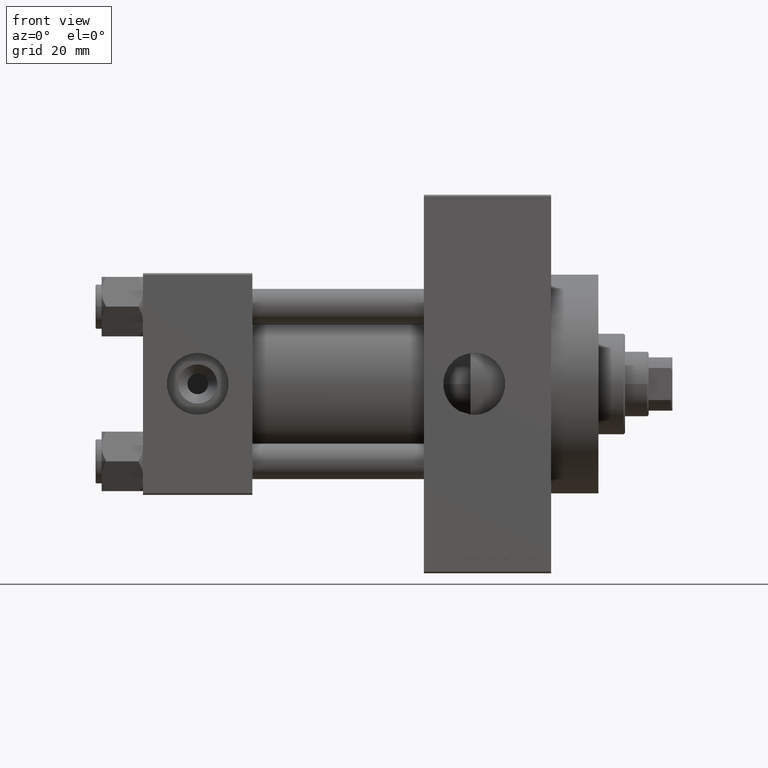
[diagram: clean part render]
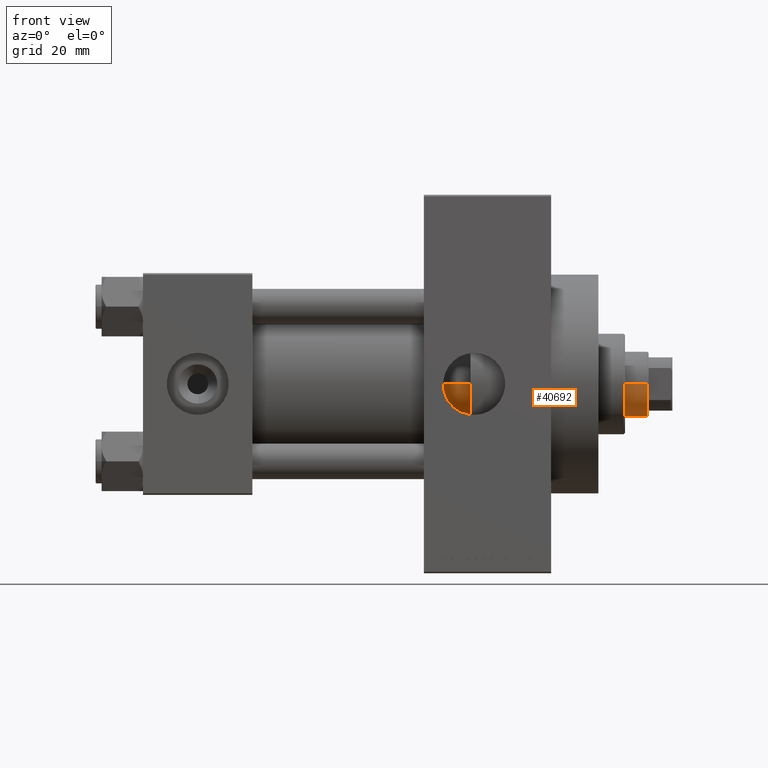
[diagram: same view with one face highlighted and labeled with its STEP entity id]
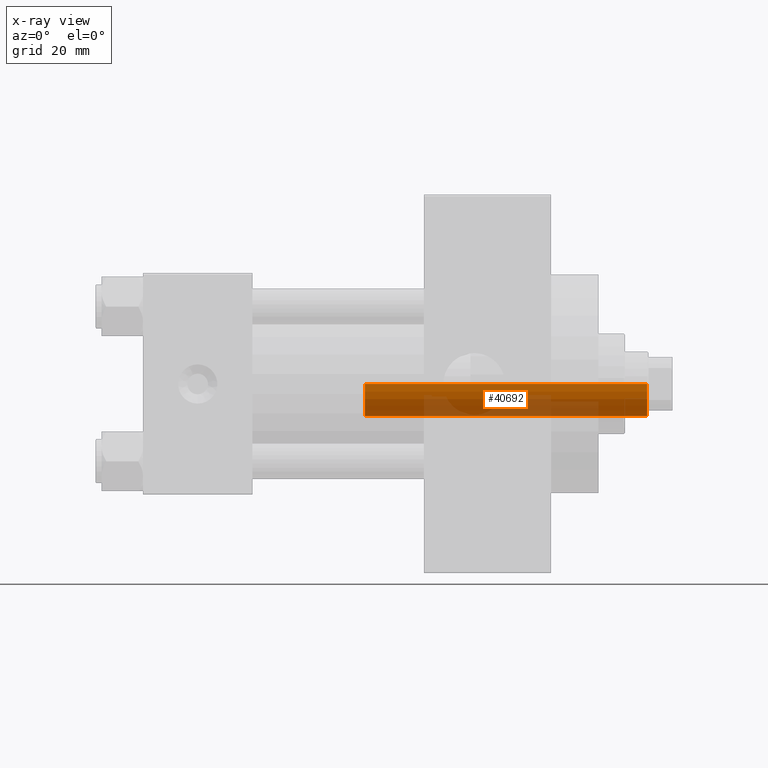
[diagram: x-ray of the same camera — body ghosted, the highlighted face saturated]
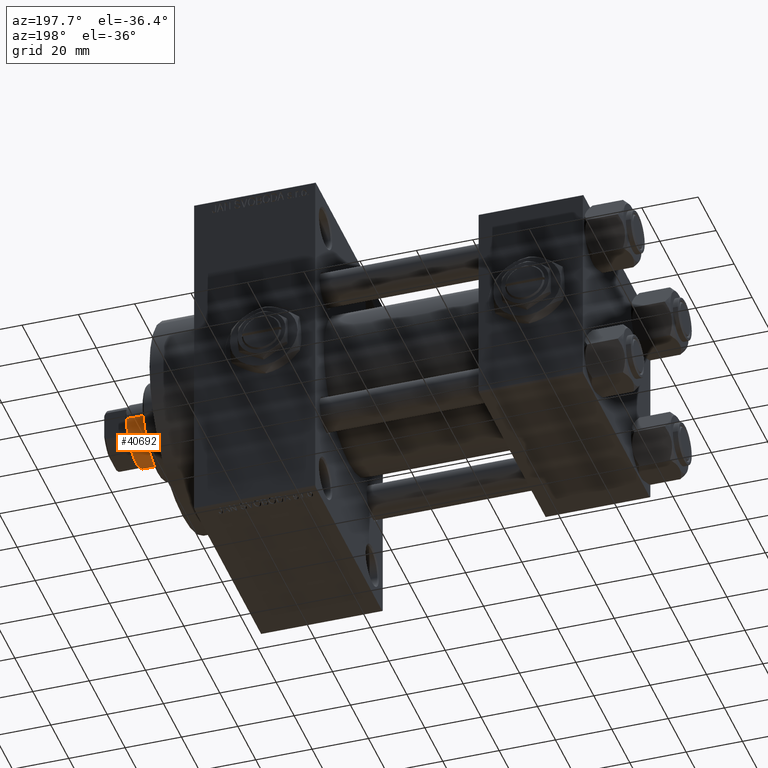
[diagram: same view with one face highlighted and labeled with its STEP entity id]
A machine part, front view. The second image highlights one B-rep face of the part: STEP entity #40692.
The next image is the same camera in x-ray: the body ghosted, the highlighted face saturated — about 28% of this face is hidden behind the body in this view.
A second angle (auxiliary view) of the same face is appended — the face is thin or edge-on in the first view.
In plain terms, the highlighted cylindrical surface (edge-blend (fillet) strip) has radius 11 mm, axis along (-1, 0, 0).
Its self-contained STEP definition (entity closure, byte-faithful):
#106 = VERTEX_POINT ( 'NONE', #40738 ) ;
#1588 = CYLINDRICAL_SURFACE ( 'NONE', #44713, 11.00000000000000000 ) ;
#1687 = AXIS2_PLACEMENT_3D ( 'NONE', #31658, #46915, #39660 ) ;
#3350 = VERTEX_POINT ( 'NONE', #23734 ) ;
#3587 = CARTESIAN_POINT ( 'NONE',  ( 11.00000000000000000, 1.347111479062088405E-15, 38.00000000000000000 ) ) ;
#5898 = ORIENTED_EDGE ( 'NONE', *, *, #20198, .T. ) ;
#6449 = CIRCLE ( 'NONE', #42416, 11.00000000000000000 ) ;
#10530 = CARTESIAN_POINT ( 'NONE',  ( -11.00000000000000000, 0.000000000000000000, 38.00000000000000000 ) ) ;
#12665 = VERTEX_POINT ( 'NONE', #10530 ) ;
#13091 = DIRECTION ( 'NONE',  ( -0.000000000000000000, -0.000000000000000000, -1.000000000000000000 ) ) ;
#15376 = ORIENTED_EDGE ( 'NONE', *, *, #49512, .F. ) ;
#16827 = CARTESIAN_POINT ( 'NONE',  ( 0.000000000000000000, 0.000000000000000000, 134.0000000000000000 ) ) ;
#20198 = EDGE_CURVE ( 'NONE', #106, #24361, #46731, .T. ) ;
#20599 = FACE_OUTER_BOUND ( 'NONE', #33076, .T. ) ;
#21326 = CARTESIAN_POINT ( 'NONE',  ( -11.00000000000000000, 0.000000000000000000, 134.0000000000000000 ) ) ;
#21619 = DIRECTION ( 'NONE',  ( 1.000000000000000000, 0.000000000000000000, 0.000000000000000000 ) ) ;
#23734 = CARTESIAN_POINT ( 'NONE',  ( -11.00000000000000000, 0.000000000000000000, 133.5000000000000000 ) ) ;
#24261 = EDGE_CURVE ( 'NONE', #24361, #12665, #6449, .T. ) ;
#24361 = VERTEX_POINT ( 'NONE', #3587 ) ;
#25278 = EDGE_CURVE ( 'NONE', #3350, #106, #28046, .T. ) ;
#27701 = CARTESIAN_POINT ( 'NONE',  ( 11.00000000000000000, 1.347111479062088405E-15, 134.0000000000000000 ) ) ;
#28046 = CIRCLE ( 'NONE', #1687, 11.00000000000000000 ) ;
#28359 = DIRECTION ( 'NONE',  ( -1.000000000000000000, 0.000000000000000000, 0.000000000000000000 ) ) ;
#29083 = DIRECTION ( 'NONE',  ( -0.000000000000000000, -0.000000000000000000, -1.000000000000000000 ) ) ;
#31658 = CARTESIAN_POINT ( 'NONE',  ( 0.000000000000000000, 0.000000000000000000, 133.5000000000000000 ) ) ;
#31988 = VECTOR ( 'NONE', #42980, 1000.000000000000000 ) ;
#32349 = LINE ( 'NONE', #21326, #48926 ) ;
#33076 = EDGE_LOOP ( 'NONE', ( #45387, #5898, #37963, #15376 ) ) ;
#37963 = ORIENTED_EDGE ( 'NONE', *, *, #24261, .T. ) ;
#39660 = DIRECTION ( 'NONE',  ( 1.000000000000000000, 0.000000000000000000, 0.000000000000000000 ) ) ;
#40639 = CARTESIAN_POINT ( 'NONE',  ( 0.000000000000000000, 0.000000000000000000, 38.00000000000000000 ) ) ;
#40692 = ADVANCED_FACE ( 'NONE', ( #20599 ), #1588, .T. ) ;
#40738 = CARTESIAN_POINT ( 'NONE',  ( 11.00000000000000000, 1.347111479062088405E-15, 133.5000000000000000 ) ) ;
#42416 = AXIS2_PLACEMENT_3D ( 'NONE', #40639, #48391, #21619 ) ;
#42980 = DIRECTION ( 'NONE',  ( -0.000000000000000000, -0.000000000000000000, -1.000000000000000000 ) ) ;
#44713 = AXIS2_PLACEMENT_3D ( 'NONE', #16827, #13091, #28359 ) ;
#45387 = ORIENTED_EDGE ( 'NONE', *, *, #25278, .T. ) ;
#46731 = LINE ( 'NONE', #27701, #31988 ) ;
#46915 = DIRECTION ( 'NONE',  ( 0.000000000000000000, 0.000000000000000000, -1.000000000000000000 ) ) ;
#48391 = DIRECTION ( 'NONE',  ( 0.000000000000000000, 0.000000000000000000, 1.000000000000000000 ) ) ;
#48926 = VECTOR ( 'NONE', #29083, 1000.000000000000000 ) ;
#49512 = EDGE_CURVE ( 'NONE', #3350, #12665, #32349, .T. ) ;